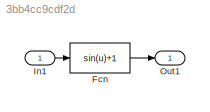
MODEL slx_3bb4cc9cdf2d
KIND model
BLOCK [Fcn] Fcn
  Expr = sin(u)+1
BLOCK [Inport] In1
  IconDisplay = Port number
  PortDimensions = 1
BLOCK [Outport] Out1
  IconDisplay = Port number
  PortDimensions = 1
LINE Fcn:1 -> Out1:1
LINE In1:1 -> Fcn:1
